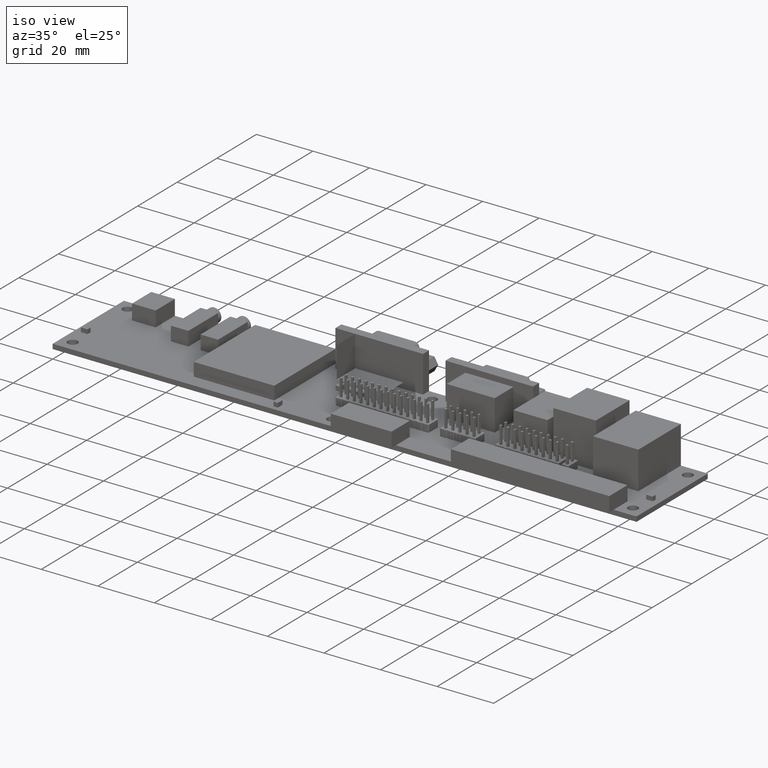
[diagram: clean part render]
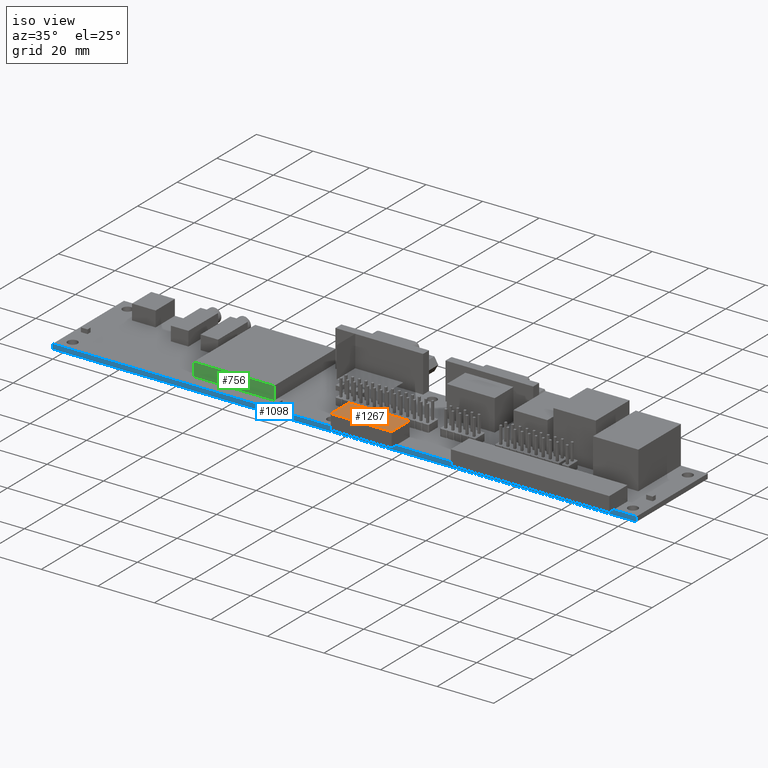
[diagram: same view with three faces highlighted in distinct colors, each labeled with its STEP entity id]
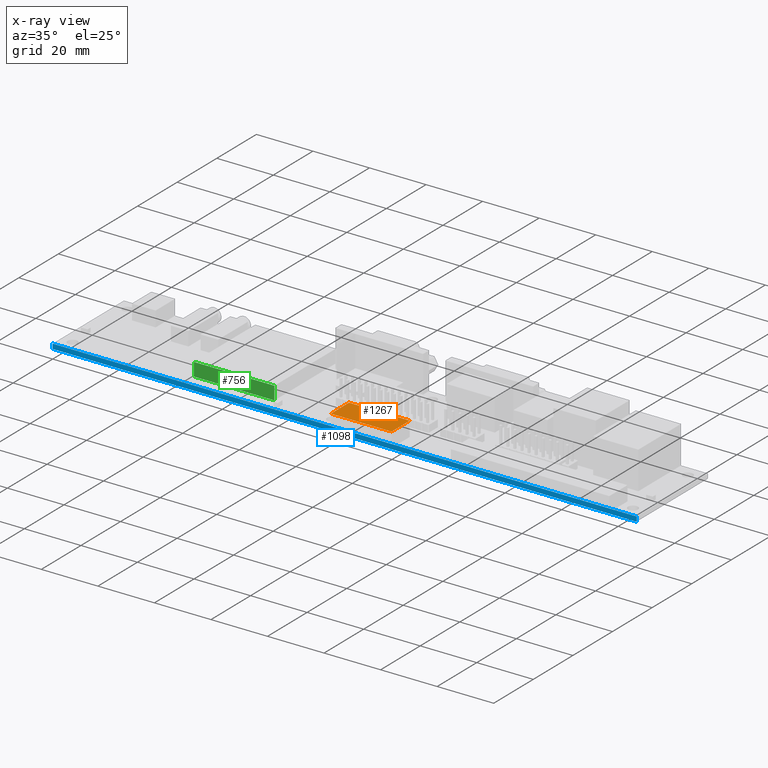
[diagram: x-ray of the same camera — body ghosted, the three highlighted faces saturated]
A machine part, iso view with three faces highlighted in distinct colors.
The next image is the same camera in x-ray (body ghosted, the three faces saturated) — at least one of them is partly hidden behind the body in this view.
Their STEP definitions:

[orange] entity #1267 — the highlighted planar face has unit normal (0, 0, 1).
#1267=ADVANCED_FACE($,(#2147),#10895,.T.);
#2147=FACE_OUTER_BOUND($,#3055,.T.);
#3055=EDGE_LOOP($,(#6912,#6913,#6914,#6915));
#6912=ORIENTED_EDGE($,*,*,#8843,.F.);
#6913=ORIENTED_EDGE($,*,*,#8842,.F.);
#6914=ORIENTED_EDGE($,*,*,#8841,.F.);
#6915=ORIENTED_EDGE($,*,*,#8840,.F.);
#8840=EDGE_CURVE($,#10130,#10131,#12820,.T.);
#8841=EDGE_CURVE($,#10131,#10132,#12821,.T.);
#8842=EDGE_CURVE($,#10132,#10133,#12822,.T.);
#8843=EDGE_CURVE($,#10133,#10130,#12823,.T.);
#10130=VERTEX_POINT($,#22515);
#10131=VERTEX_POINT($,#22516);
#10132=VERTEX_POINT($,#22517);
#10133=VERTEX_POINT($,#22518);
#10895=PLANE($,#13639);
#12820=B_SPLINE_CURVE_WITH_KNOTS($,1,(#22489,#22490),.UNSPECIFIED.,.F.,.F.,
(2,2),(0.,9.2),.UNSPECIFIED.);
#12821=B_SPLINE_CURVE_WITH_KNOTS($,1,(#22491,#22492),.UNSPECIFIED.,.F.,.F.,
(2,2),(0.,56.),.UNSPECIFIED.);
#12822=B_SPLINE_CURVE_WITH_KNOTS($,1,(#22493,#22494),.UNSPECIFIED.,.F.,.F.,
(2,2),(0.,9.2),.UNSPECIFIED.);
#12823=B_SPLINE_CURVE_WITH_KNOTS($,1,(#22495,#22496),.UNSPECIFIED.,.F.,.F.,
(2,2),(0.,56.),.UNSPECIFIED.);
#13639=AXIS2_PLACEMENT_3D($,#22510,#14367,$);
#14367=DIRECTION($,(0.,0.,1.));
#22489=CARTESIAN_POINT($,(99.9,-2.2,6.9));
#22490=CARTESIAN_POINT($,(99.9,7.,6.9));
#22491=CARTESIAN_POINT($,(99.9,7.,6.9));
#22492=CARTESIAN_POINT($,(121.4,7.,6.9));
#22493=CARTESIAN_POINT($,(121.4,7.,6.9));
#22494=CARTESIAN_POINT($,(121.4,-2.2,6.9));
#22495=CARTESIAN_POINT($,(121.4,-2.2,6.9));
#22496=CARTESIAN_POINT($,(99.9,-2.2,6.9));
#22510=CARTESIAN_POINT($,(99.9,-2.2,6.9));
#22515=CARTESIAN_POINT($,(99.9,-2.2,6.9));
#22516=CARTESIAN_POINT($,(99.9,7.,6.9));
#22517=CARTESIAN_POINT($,(121.4,7.,6.9));
#22518=CARTESIAN_POINT($,(121.4,-2.2,6.9));

[blue] entity #1098 — the highlighted planar face has unit normal (0, -1, 0).
#1098=ADVANCED_FACE($,(#1978),#10764,.T.);
#1978=FACE_OUTER_BOUND($,#2859,.T.);
#2859=EDGE_LOOP($,(#6128,#6129,#6130,#6131));
#6128=ORIENTED_EDGE($,*,*,#8458,.T.);
#6129=ORIENTED_EDGE($,*,*,#8454,.T.);
#6130=ORIENTED_EDGE($,*,*,#8455,.F.);
#6131=ORIENTED_EDGE($,*,*,#8450,.F.);
#8450=EDGE_CURVE($,#9871,#9868,#12486,.T.);
#8454=EDGE_CURVE($,#9875,#9872,#12490,.T.);
#8455=EDGE_CURVE($,#9868,#9872,#12491,.T.);
#8458=EDGE_CURVE($,#9871,#9875,#12494,.T.);
#9868=VERTEX_POINT($,#20778);
#9871=VERTEX_POINT($,#20781);
#9872=VERTEX_POINT($,#20782);
#9875=VERTEX_POINT($,#20785);
#10764=PLANE($,#13508);
#12486=B_SPLINE_CURVE_WITH_KNOTS($,1,(#20490,#20491),.UNSPECIFIED.,.F.,.F.,
(2,2),(0.,206.5),.UNSPECIFIED.);
#12490=B_SPLINE_CURVE_WITH_KNOTS($,1,(#20498,#20499),.UNSPECIFIED.,.F.,.F.,
(2,2),(0.,206.5),.UNSPECIFIED.);
#12491=B_SPLINE_CURVE_WITH_KNOTS($,1,(#20500,#20501),.UNSPECIFIED.,.F.,.F.,
(2,2),(0.,1.7),.UNSPECIFIED.);
#12494=B_SPLINE_CURVE_WITH_KNOTS($,1,(#20506,#20507),.UNSPECIFIED.,.F.,.F.,
(2,2),(0.,1.7),.UNSPECIFIED.);
#13508=AXIS2_PLACEMENT_3D($,#20655,#14236,$);
#14236=DIRECTION($,(0.,-1.,0.));
#20490=CARTESIAN_POINT($,(206.5,0.,0.));
#20491=CARTESIAN_POINT($,(0.,0.,0.));
#20498=CARTESIAN_POINT($,(206.5,0.,1.7));
#20499=CARTESIAN_POINT($,(0.,0.,1.7));
#20500=CARTESIAN_POINT($,(0.,0.,0.));
#20501=CARTESIAN_POINT($,(0.,0.,1.7));
#20506=CARTESIAN_POINT($,(206.5,0.,0.));
#20507=CARTESIAN_POINT($,(206.5,0.,1.7));
#20655=CARTESIAN_POINT($,(206.5,0.,0.));
#20778=CARTESIAN_POINT($,(0.,0.,0.));
#20781=CARTESIAN_POINT($,(206.5,0.,0.));
#20782=CARTESIAN_POINT($,(0.,0.,1.7));
#20785=CARTESIAN_POINT($,(206.5,0.,1.7));

[green] entity #756 — the highlighted planar face has unit normal (0, -1, 0).
#756=ADVANCED_FACE($,(#1636),#10482,.T.);
#1636=FACE_OUTER_BOUND($,#2517,.T.);
#2517=EDGE_LOOP($,(#4640,#4641,#4642,#4643));
#4640=ORIENTED_EDGE($,*,*,#7714,.T.);
#4641=ORIENTED_EDGE($,*,*,#7710,.T.);
#4642=ORIENTED_EDGE($,*,*,#7711,.F.);
#4643=ORIENTED_EDGE($,*,*,#7706,.F.);
#7706=EDGE_CURVE($,#9375,#9372,#11742,.T.);
#7710=EDGE_CURVE($,#9379,#9376,#11746,.T.);
#7711=EDGE_CURVE($,#9372,#9376,#11747,.T.);
#7714=EDGE_CURVE($,#9375,#9379,#11750,.T.);
#9372=VERTEX_POINT($,#17528);
#9375=VERTEX_POINT($,#17531);
#9376=VERTEX_POINT($,#17532);
#9379=VERTEX_POINT($,#17535);
#10482=PLANE($,#13226);
#11742=B_SPLINE_CURVE_WITH_KNOTS($,1,(#17504,#17505),.UNSPECIFIED.,.F.,.F.,
(2,2),(0.,20.8),.UNSPECIFIED.);
#11746=B_SPLINE_CURVE_WITH_KNOTS($,1,(#17512,#17513),.UNSPECIFIED.,.F.,.F.,
(2,2),(0.,20.8),.UNSPECIFIED.);
#11747=B_SPLINE_CURVE_WITH_KNOTS($,1,(#17514,#17515),.UNSPECIFIED.,.F.,.F.,
(2,2),(0.,2.5),.UNSPECIFIED.);
#11750=B_SPLINE_CURVE_WITH_KNOTS($,1,(#17520,#17521),.UNSPECIFIED.,.F.,.F.,
(2,2),(0.,2.5),.UNSPECIFIED.);
#13226=AXIS2_PLACEMENT_3D($,#17525,#13954,$);
#13954=DIRECTION($,(0.,-1.,0.));
#17504=CARTESIAN_POINT($,(74.9,5.,1.7));
#17505=CARTESIAN_POINT($,(46.4,5.,1.7));
#17512=CARTESIAN_POINT($,(74.9,5.,6.4));
#17513=CARTESIAN_POINT($,(46.4,5.,6.4));
#17514=CARTESIAN_POINT($,(46.4,5.,1.7));
#17515=CARTESIAN_POINT($,(46.4,5.,6.4));
#17520=CARTESIAN_POINT($,(74.9,5.,1.7));
#17521=CARTESIAN_POINT($,(74.9,5.,6.4));
#17525=CARTESIAN_POINT($,(74.9,5.,1.7));
#17528=CARTESIAN_POINT($,(46.4,5.,1.7));
#17531=CARTESIAN_POINT($,(74.9,5.,1.7));
#17532=CARTESIAN_POINT($,(46.4,5.,6.4));
#17535=CARTESIAN_POINT($,(74.9,5.,6.4));